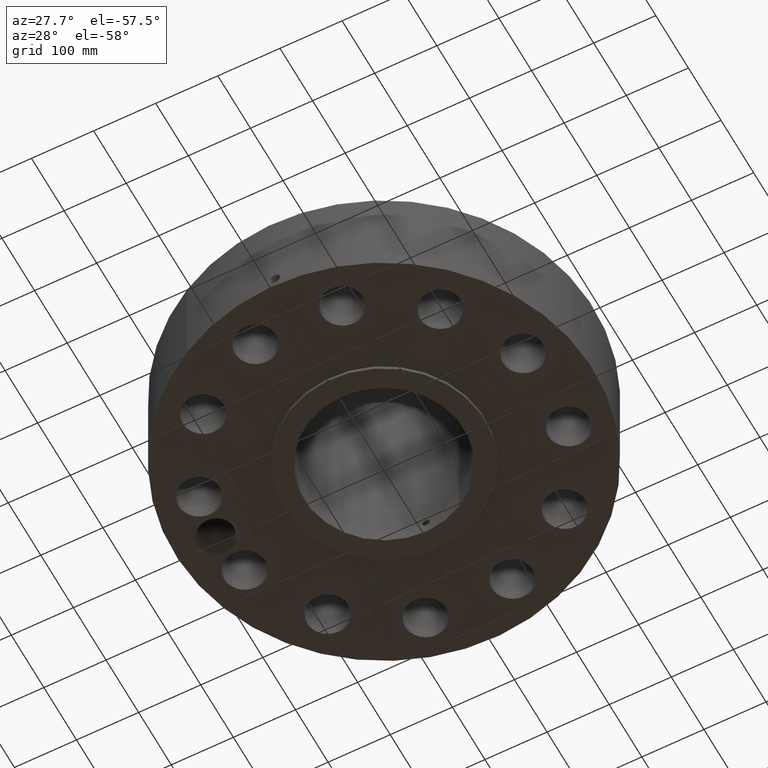
[diagram: clean part render]
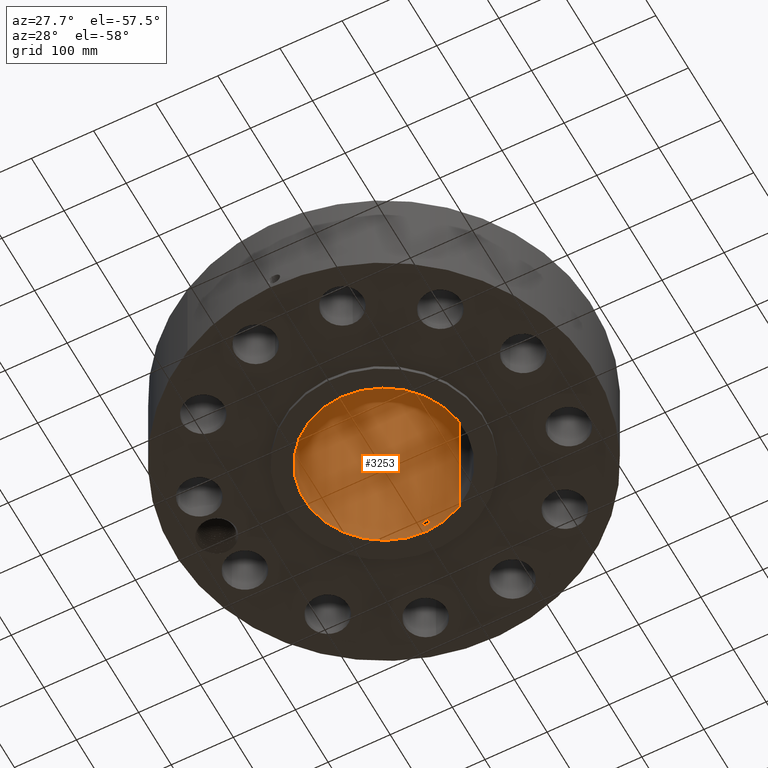
[diagram: same view with one face highlighted and labeled with its STEP entity id]
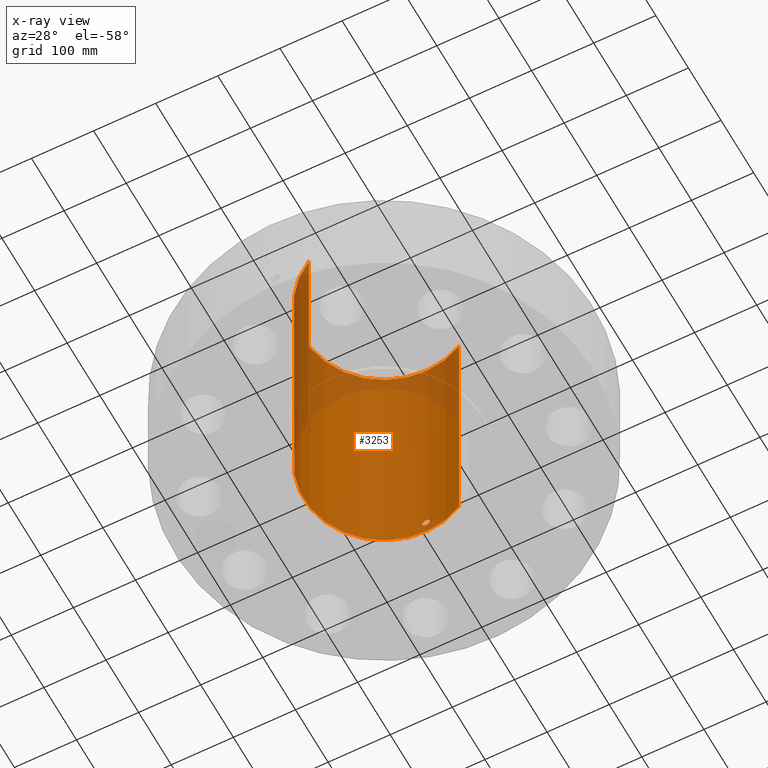
[diagram: x-ray of the same camera — body ghosted, the highlighted face saturated]
A machine part, auxiliary view. The second image highlights one B-rep face of the part: STEP entity #3253.
The next image is the same camera in x-ray: the body ghosted, the highlighted face saturated — about 23% of this face is hidden behind the body in this view.
In plain terms, the highlighted cylindrical surface (partial cylindrical patch) has radius 128.727 mm, axis along (0, 0, -1).
Its self-contained STEP definition (entity closure, byte-faithful):
#2366=AXIS2_PLACEMENT_3D('Circle Axis2P3D',#2364,#2365,$) ;
#3130=AXIS2_PLACEMENT_3D('Cylinder Axis2P3D',#3127,#3128,#3129) ;
#3202=AXIS2_PLACEMENT_3D('Circle Axis2P3D',#3200,#3201,$) ;
#2359=CARTESIAN_POINT('Vertex',(2.42972862966,4.44758842368,-1.45465441967E-014)) ;
#2361=CARTESIAN_POINT('Vertex',(-2.42972862966,-4.44758842368,-1.45465441967E-014)) ;
#2364=CARTESIAN_POINT('Axis2P3D Location',(0.,0.,0.)) ;
#3127=CARTESIAN_POINT('Axis2P3D Location',(0.,0.,8.37500000003)) ;
#3136=CARTESIAN_POINT('Vertex',(2.42972862966,4.44758842368,16.7500000001)) ;
#3138=CARTESIAN_POINT('Vertex',(-2.42972862966,-4.44758842368,16.7500000001)) ;
#3141=CARTESIAN_POINT('Line Origine',(2.42972862966,4.44758842368,8.37500000003)) ;
#3146=CARTESIAN_POINT('Line Origine',(-2.42972862966,-4.44758842368,8.37500000003)) ;
#3200=CARTESIAN_POINT('Axis2P3D Location',(0.,0.,16.7500000001)) ;
#3212=CARTESIAN_POINT('Control Point',(0.219395640473,5.06324891282,1.05985638466)) ;
#3213=CARTESIAN_POINT('Control Point',(0.2069217195,5.06378942029,1.08268974384)) ;
#3214=CARTESIAN_POINT('Control Point',(0.191478260007,5.06442011497,1.10389868036)) ;
#3215=CARTESIAN_POINT('Control Point',(0.17334521735,5.0650922661,1.12297023904)) ;
#3216=CARTESIAN_POINT('Control Point',(0.112136795113,5.06703633096,1.17244893639)) ;
#3217=CARTESIAN_POINT('Control Point',(0.0349822800779,5.06829938306,1.19597344248)) ;
#3218=CARTESIAN_POINT('Control Point',(-0.01955989426,5.06839375583,1.19761228124)) ;
#3219=CARTESIAN_POINT('Control Point',(-0.1241451304,5.06700352883,1.17247015522)) ;
#3220=CARTESIAN_POINT('Control Point',(-0.203189946676,5.06412590488,1.0995592058)) ;
#3221=CARTESIAN_POINT('Control Point',(-0.232166968337,5.06270914309,1.05334455239)) ;
#3222=CARTESIAN_POINT('Control Point',(-0.255833238282,5.06154277102,0.975188263697)) ;
#3223=CARTESIAN_POINT('Control Point',(-0.248295655355,5.0619139393,0.895799642862)) ;
#3224=CARTESIAN_POINT('Control Point',(-0.242061572612,5.06222543809,0.869216522206)) ;
#3225=CARTESIAN_POINT('Control Point',(-0.232323388935,5.06268874054,0.843807700181)) ;
#3226=CARTESIAN_POINT('Control Point',(-0.219395640473,5.06324891282,0.820143615352)) ;
#3227=CARTESIAN_POINT('Vertex',(0.219395640473,5.06324891282,1.05985638466)) ;
#3229=CARTESIAN_POINT('Vertex',(-0.219395640473,5.06324891282,0.820143615352)) ;
#3233=CARTESIAN_POINT('Control Point',(-0.219395640473,5.06324891282,0.820143615352)) ;
#3234=CARTESIAN_POINT('Control Point',(-0.206921719502,5.06378942029,0.797310256173)) ;
#3235=CARTESIAN_POINT('Control Point',(-0.191478260011,5.06442011497,0.776101319659)) ;
#3236=CARTESIAN_POINT('Control Point',(-0.173345217346,5.0650922661,0.757029760969)) ;
#3237=CARTESIAN_POINT('Control Point',(-0.112136795104,5.06703633096,0.707551063611)) ;
#3238=CARTESIAN_POINT('Control Point',(-0.0349822800593,5.06829938306,0.684026557523)) ;
#3239=CARTESIAN_POINT('Control Point',(0.0195598942339,5.06839375583,0.68238771876)) ;
#3240=CARTESIAN_POINT('Control Point',(0.12414513041,5.06700352883,0.707529844778)) ;
#3241=CARTESIAN_POINT('Control Point',(0.203189946707,5.06412590488,0.780440794233)) ;
#3242=CARTESIAN_POINT('Control Point',(0.232166968324,5.06270914309,0.826655447572)) ;
#3243=CARTESIAN_POINT('Control Point',(0.255833238277,5.06154277102,0.904811736265)) ;
#3244=CARTESIAN_POINT('Control Point',(0.24829565536,5.0619139393,0.9842003571)) ;
#3245=CARTESIAN_POINT('Control Point',(0.242061572597,5.06222543809,1.01078347784)) ;
#3246=CARTESIAN_POINT('Control Point',(0.232323388925,5.06268874054,1.03619229984)) ;
#3247=CARTESIAN_POINT('Control Point',(0.219395640473,5.06324891282,1.05985638466)) ;
#2365=DIRECTION('Axis2P3D Direction',(0.,0.,-0.0393700787402)) ;
#3128=DIRECTION('Axis2P3D Direction',(0.,0.,-0.0393700787402)) ;
#3129=DIRECTION('Axis2P3D XDirection',(-0.0188750212049,-0.0345504945626,0.)) ;
#3142=DIRECTION('Vector Direction',(0.,0.,-0.0393700787402)) ;
#3147=DIRECTION('Vector Direction',(0.,0.,-0.0393700787402)) ;
#3201=DIRECTION('Axis2P3D Direction',(0.,0.,-0.0393700787402)) ;
#3143=VECTOR('Line Direction',#3142,0.0393700787402) ;
#3148=VECTOR('Line Direction',#3147,0.0393700787402) ;
#3206=ORIENTED_EDGE('',*,*,#3204,.F.) ;
#3207=ORIENTED_EDGE('',*,*,#3150,.T.) ;
#3208=ORIENTED_EDGE('',*,*,#2368,.T.) ;
#3209=ORIENTED_EDGE('',*,*,#3145,.F.) ;
#3250=ORIENTED_EDGE('',*,*,#3231,.F.) ;
#3251=ORIENTED_EDGE('',*,*,#3248,.F.) ;
#3252=FACE_BOUND('',#3249,.T.) ;
#3253=ADVANCED_FACE('PartBody',(#3210,#3252),#3131,.F.) ;
#3211=B_SPLINE_CURVE_WITH_KNOTS('',5,(#3212,#3213,#3214,#3215,#3216,#3217,#3218,#3219,#3220,#3221,#3222,#3223,#3224,#3225,#3226),.UNSPECIFIED.,.F.,.U.,(6,3,3,3,6),(0.,4.67405947022,14.0221239065,23.3721121509,28.2162237382),.UNSPECIFIED.) ;
#3232=B_SPLINE_CURVE_WITH_KNOTS('',5,(#3233,#3234,#3235,#3236,#3237,#3238,#3239,#3240,#3241,#3242,#3243,#3244,#3245,#3246,#3247),.UNSPECIFIED.,.F.,.U.,(6,3,3,3,6),(0.,4.67405946948,14.0221239077,23.372112156,28.2162237396),.UNSPECIFIED.) ;
#2367=CIRCLE('generated circle',#2366,5.06800000002) ;
#3203=CIRCLE('generated circle',#3202,5.06800000002) ;
#3131=CYLINDRICAL_SURFACE('generated cylinder',#3130,5.06800000002) ;
#2368=EDGE_CURVE('',#2362,#2360,#2367,.T.) ;
#3145=EDGE_CURVE('',#3137,#2360,#3144,.T.) ;
#3150=EDGE_CURVE('',#3139,#2362,#3149,.T.) ;
#3204=EDGE_CURVE('',#3139,#3137,#3203,.T.) ;
#3231=EDGE_CURVE('',#3228,#3230,#3211,.T.) ;
#3248=EDGE_CURVE('',#3230,#3228,#3232,.T.) ;
#3205=EDGE_LOOP('',(#3206,#3207,#3208,#3209)) ;
#3249=EDGE_LOOP('',(#3250,#3251)) ;
#3210=FACE_OUTER_BOUND('',#3205,.T.) ;
#3144=LINE('Line',#3141,#3143) ;
#3149=LINE('Line',#3146,#3148) ;
#2360=VERTEX_POINT('',#2359) ;
#2362=VERTEX_POINT('',#2361) ;
#3137=VERTEX_POINT('',#3136) ;
#3139=VERTEX_POINT('',#3138) ;
#3228=VERTEX_POINT('',#3227) ;
#3230=VERTEX_POINT('',#3229) ;